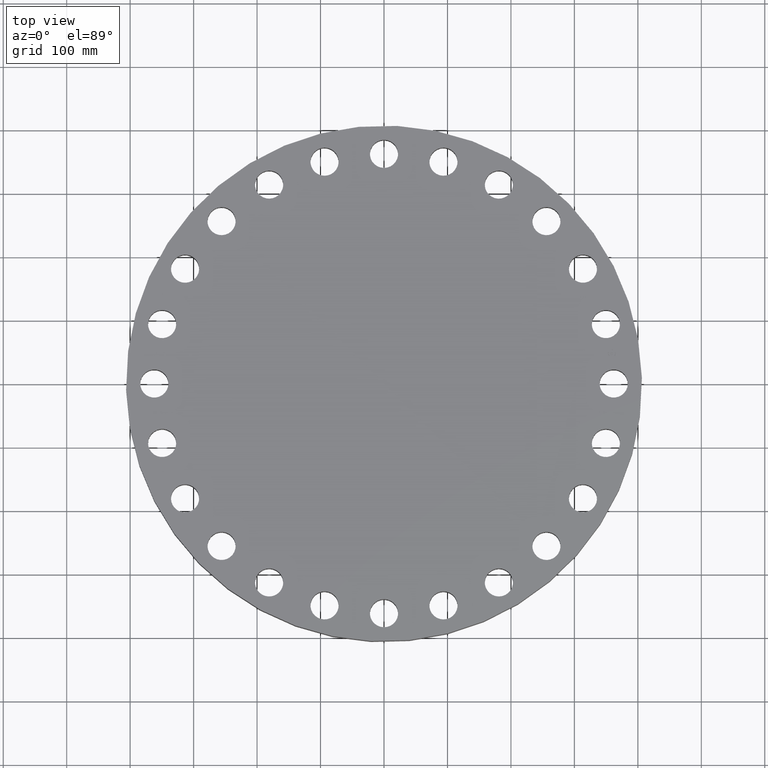
[diagram: clean part render]
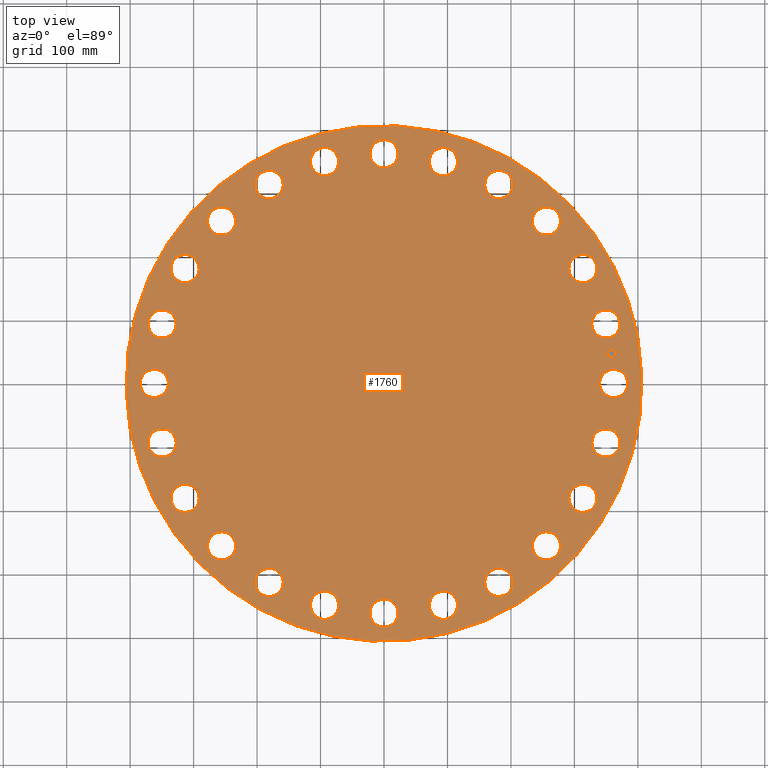
[diagram: same view with one face highlighted and labeled with its STEP entity id]
A machine part, top view. The second image highlights one B-rep face of the part: STEP entity #1760.
In plain terms, the highlighted planar face has unit normal (0, 0, -1).
Its self-contained STEP definition (entity closure, byte-faithful):
#65=AXIS2_PLACEMENT_3D('Circle Axis2P3D',#63,#64,$) ;
#82=AXIS2_PLACEMENT_3D('Circle Axis2P3D',#80,#81,$) ;
#115=AXIS2_PLACEMENT_3D('Circle Axis2P3D',#113,#114,$) ;
#139=AXIS2_PLACEMENT_3D('Circle Axis2P3D',#137,#138,$) ;
#669=AXIS2_PLACEMENT_3D('Circle Axis2P3D',#667,#668,$) ;
#681=AXIS2_PLACEMENT_3D('Circle Axis2P3D',#679,#680,$) ;
#712=AXIS2_PLACEMENT_3D('Circle Axis2P3D',#710,#711,$) ;
#724=AXIS2_PLACEMENT_3D('Circle Axis2P3D',#722,#723,$) ;
#755=AXIS2_PLACEMENT_3D('Circle Axis2P3D',#753,#754,$) ;
#767=AXIS2_PLACEMENT_3D('Circle Axis2P3D',#765,#766,$) ;
#798=AXIS2_PLACEMENT_3D('Circle Axis2P3D',#796,#797,$) ;
#810=AXIS2_PLACEMENT_3D('Circle Axis2P3D',#808,#809,$) ;
#841=AXIS2_PLACEMENT_3D('Circle Axis2P3D',#839,#840,$) ;
#853=AXIS2_PLACEMENT_3D('Circle Axis2P3D',#851,#852,$) ;
#884=AXIS2_PLACEMENT_3D('Circle Axis2P3D',#882,#883,$) ;
#896=AXIS2_PLACEMENT_3D('Circle Axis2P3D',#894,#895,$) ;
#927=AXIS2_PLACEMENT_3D('Circle Axis2P3D',#925,#926,$) ;
#939=AXIS2_PLACEMENT_3D('Circle Axis2P3D',#937,#938,$) ;
#970=AXIS2_PLACEMENT_3D('Circle Axis2P3D',#968,#969,$) ;
#982=AXIS2_PLACEMENT_3D('Circle Axis2P3D',#980,#981,$) ;
#1013=AXIS2_PLACEMENT_3D('Circle Axis2P3D',#1011,#1012,$) ;
#1025=AXIS2_PLACEMENT_3D('Circle Axis2P3D',#1023,#1024,$) ;
#1056=AXIS2_PLACEMENT_3D('Circle Axis2P3D',#1054,#1055,$) ;
#1068=AXIS2_PLACEMENT_3D('Circle Axis2P3D',#1066,#1067,$) ;
#1099=AXIS2_PLACEMENT_3D('Circle Axis2P3D',#1097,#1098,$) ;
#1111=AXIS2_PLACEMENT_3D('Circle Axis2P3D',#1109,#1110,$) ;
#1142=AXIS2_PLACEMENT_3D('Circle Axis2P3D',#1140,#1141,$) ;
#1154=AXIS2_PLACEMENT_3D('Circle Axis2P3D',#1152,#1153,$) ;
#1185=AXIS2_PLACEMENT_3D('Circle Axis2P3D',#1183,#1184,$) ;
#1197=AXIS2_PLACEMENT_3D('Circle Axis2P3D',#1195,#1196,$) ;
#1228=AXIS2_PLACEMENT_3D('Circle Axis2P3D',#1226,#1227,$) ;
#1240=AXIS2_PLACEMENT_3D('Circle Axis2P3D',#1238,#1239,$) ;
#1271=AXIS2_PLACEMENT_3D('Circle Axis2P3D',#1269,#1270,$) ;
#1283=AXIS2_PLACEMENT_3D('Circle Axis2P3D',#1281,#1282,$) ;
#1314=AXIS2_PLACEMENT_3D('Circle Axis2P3D',#1312,#1313,$) ;
#1326=AXIS2_PLACEMENT_3D('Circle Axis2P3D',#1324,#1325,$) ;
#1357=AXIS2_PLACEMENT_3D('Circle Axis2P3D',#1355,#1356,$) ;
#1369=AXIS2_PLACEMENT_3D('Circle Axis2P3D',#1367,#1368,$) ;
#1400=AXIS2_PLACEMENT_3D('Circle Axis2P3D',#1398,#1399,$) ;
#1412=AXIS2_PLACEMENT_3D('Circle Axis2P3D',#1410,#1411,$) ;
#1443=AXIS2_PLACEMENT_3D('Circle Axis2P3D',#1441,#1442,$) ;
#1455=AXIS2_PLACEMENT_3D('Circle Axis2P3D',#1453,#1454,$) ;
#1486=AXIS2_PLACEMENT_3D('Circle Axis2P3D',#1484,#1485,$) ;
#1498=AXIS2_PLACEMENT_3D('Circle Axis2P3D',#1496,#1497,$) ;
#1529=AXIS2_PLACEMENT_3D('Circle Axis2P3D',#1527,#1528,$) ;
#1541=AXIS2_PLACEMENT_3D('Circle Axis2P3D',#1539,#1540,$) ;
#1572=AXIS2_PLACEMENT_3D('Circle Axis2P3D',#1570,#1571,$) ;
#1584=AXIS2_PLACEMENT_3D('Circle Axis2P3D',#1582,#1583,$) ;
#1615=AXIS2_PLACEMENT_3D('Circle Axis2P3D',#1613,#1614,$) ;
#1627=AXIS2_PLACEMENT_3D('Circle Axis2P3D',#1625,#1626,$) ;
#1640=AXIS2_PLACEMENT_3D('Plane Axis2P3D',#1637,#1638,#1639) ;
#1744=AXIS2_PLACEMENT_3D('Circle Axis2P3D',#1742,#1743,$) ;
#1753=AXIS2_PLACEMENT_3D('Circle Axis2P3D',#1751,#1752,$) ;
#46=CARTESIAN_POINT('Vertex',(13.4821152584,0.41949734628,3.50000000001)) ;
#60=CARTESIAN_POINT('Vertex',(15.0178847417,-0.41949734628,3.50000000001)) ;
#63=CARTESIAN_POINT('Axis2P3D Location',(14.2500000001,0.,3.50000000001)) ;
#80=CARTESIAN_POINT('Axis2P3D Location',(14.2500000001,0.,3.50000000001)) ;
#110=CARTESIAN_POINT('Vertex',(-7.6708086177,-14.0413209903,3.50000000001)) ;
#113=CARTESIAN_POINT('Axis2P3D Location',(0.,0.,3.50000000001)) ;
#117=CARTESIAN_POINT('Vertex',(7.6708086177,14.0413209903,3.50000000001)) ;
#137=CARTESIAN_POINT('Axis2P3D Location',(0.,0.,3.50000000001)) ;
#657=CARTESIAN_POINT('Vertex',(-13.1312972237,3.08422487631,3.50000000001)) ;
#664=CARTESIAN_POINT('Vertex',(-14.3975888257,4.29211790914,3.50000000001)) ;
#667=CARTESIAN_POINT('Axis2P3D Location',(-13.7644430247,3.68817139273,3.50000000001)) ;
#679=CARTESIAN_POINT('Axis2P3D Location',(-13.7644430247,3.68817139273,3.50000000001)) ;
#700=CARTESIAN_POINT('Vertex',(11.8856029837,-6.3777622705,3.50000000001)) ;
#707=CARTESIAN_POINT('Vertex',(12.7961210243,-7.87223772956,3.50000000001)) ;
#710=CARTESIAN_POINT('Axis2P3D Location',(12.340862004,-7.12500000003,3.50000000001)) ;
#722=CARTESIAN_POINT('Axis2P3D Location',(12.340862004,-7.12500000003,3.50000000001)) ;
#743=CARTESIAN_POINT('Vertex',(-11.8856029837,6.3777622705,3.50000000001)) ;
#750=CARTESIAN_POINT('Vertex',(-12.7961210243,7.87223772956,3.50000000001)) ;
#753=CARTESIAN_POINT('Axis2P3D Location',(-12.340862004,7.12500000003,3.50000000001)) ;
#765=CARTESIAN_POINT('Axis2P3D Location',(-12.340862004,7.12500000003,3.50000000001)) ;
#786=CARTESIAN_POINT('Vertex',(9.8299245422,-9.23666570571,3.50000000001)) ;
#793=CARTESIAN_POINT('Vertex',(10.3226187217,-10.9158775582,3.50000000001)) ;
#796=CARTESIAN_POINT('Axis2P3D Location',(10.0762716319,-10.0762716319,3.50000000001)) ;
#808=CARTESIAN_POINT('Axis2P3D Location',(10.0762716319,-10.0762716319,3.50000000001)) ;
#829=CARTESIAN_POINT('Vertex',(-9.8299245422,9.23666570571,3.50000000001)) ;
#836=CARTESIAN_POINT('Vertex',(-10.3226187217,10.9158775582,3.50000000001)) ;
#839=CARTESIAN_POINT('Axis2P3D Location',(-10.0762716319,10.0762716319,3.50000000001)) ;
#851=CARTESIAN_POINT('Axis2P3D Location',(-10.0762716319,10.0762716319,3.50000000001)) ;
#872=CARTESIAN_POINT('Vertex',(7.1043529879,-11.4661056374,3.50000000001)) ;
#879=CARTESIAN_POINT('Vertex',(7.14564701216,-13.2156183706,3.50000000001)) ;
#882=CARTESIAN_POINT('Axis2P3D Location',(7.12500000003,-12.340862004,3.50000000001)) ;
#894=CARTESIAN_POINT('Axis2P3D Location',(7.12500000003,-12.340862004,3.50000000001)) ;
#915=CARTESIAN_POINT('Vertex',(-7.1043529879,11.4661056374,3.50000000001)) ;
#922=CARTESIAN_POINT('Vertex',(-7.14564701216,13.2156183706,3.50000000001)) ;
#925=CARTESIAN_POINT('Axis2P3D Location',(-7.12500000003,12.340862004,3.50000000001)) ;
#937=CARTESIAN_POINT('Axis2P3D Location',(-7.12500000003,12.340862004,3.50000000001)) ;
#958=CARTESIAN_POINT('Vertex',(3.89463151797,-12.9141494185,3.50000000001)) ;
#965=CARTESIAN_POINT('Vertex',(3.48171126748,-14.6147366308,3.50000000001)) ;
#968=CARTESIAN_POINT('Axis2P3D Location',(3.68817139273,-13.7644430247,3.50000000001)) ;
#980=CARTESIAN_POINT('Axis2P3D Location',(3.68817139273,-13.7644430247,3.50000000001)) ;
#1001=CARTESIAN_POINT('Vertex',(-3.89463151797,12.9141494185,3.50000000001)) ;
#1008=CARTESIAN_POINT('Vertex',(-3.48171126748,14.6147366308,3.50000000001)) ;
#1011=CARTESIAN_POINT('Axis2P3D Location',(-3.68817139273,13.7644430247,3.50000000001)) ;
#1023=CARTESIAN_POINT('Axis2P3D Location',(-3.68817139273,13.7644430247,3.50000000001)) ;
#1044=CARTESIAN_POINT('Vertex',(0.41949734628,-13.4821152584,3.50000000001)) ;
#1051=CARTESIAN_POINT('Vertex',(-0.41949734628,-15.0178847417,3.50000000001)) ;
#1054=CARTESIAN_POINT('Axis2P3D Location',(-1.36536903201E-015,-14.2500000001,3.50000000001)) ;
#1066=CARTESIAN_POINT('Axis2P3D Location',(-1.36536903201E-015,-14.2500000001,3.50000000001)) ;
#1087=CARTESIAN_POINT('Vertex',(-0.41949734628,13.4821152584,3.50000000001)) ;
#1094=CARTESIAN_POINT('Vertex',(0.41949734628,15.0178847417,3.50000000001)) ;
#1097=CARTESIAN_POINT('Axis2P3D Location',(-2.61768253319E-015,14.2500000001,3.50000000001)) ;
#1109=CARTESIAN_POINT('Axis2P3D Location',(-2.61768253319E-015,14.2500000001,3.50000000001)) ;
#1130=CARTESIAN_POINT('Vertex',(-3.08422487631,-13.1312972237,3.50000000001)) ;
#1137=CARTESIAN_POINT('Vertex',(-4.29211790914,-14.3975888257,3.50000000001)) ;
#1140=CARTESIAN_POINT('Axis2P3D Location',(-3.68817139273,-13.7644430247,3.50000000001)) ;
#1152=CARTESIAN_POINT('Axis2P3D Location',(-3.68817139273,-13.7644430247,3.50000000001)) ;
#1173=CARTESIAN_POINT('Vertex',(3.08422487631,13.1312972237,3.50000000001)) ;
#1180=CARTESIAN_POINT('Vertex',(4.29211790914,14.3975888257,3.50000000001)) ;
#1183=CARTESIAN_POINT('Axis2P3D Location',(3.68817139273,13.7644430247,3.50000000001)) ;
#1195=CARTESIAN_POINT('Axis2P3D Location',(3.68817139273,13.7644430247,3.50000000001)) ;
#1216=CARTESIAN_POINT('Vertex',(-6.3777622705,-11.8856029837,3.50000000001)) ;
#1223=CARTESIAN_POINT('Vertex',(-7.87223772956,-12.7961210243,3.50000000001)) ;
#1226=CARTESIAN_POINT('Axis2P3D Location',(-7.12500000003,-12.340862004,3.50000000001)) ;
#1238=CARTESIAN_POINT('Axis2P3D Location',(-7.12500000003,-12.340862004,3.50000000001)) ;
#1259=CARTESIAN_POINT('Vertex',(6.3777622705,11.8856029837,3.50000000001)) ;
#1266=CARTESIAN_POINT('Vertex',(7.87223772956,12.7961210243,3.50000000001)) ;
#1269=CARTESIAN_POINT('Axis2P3D Location',(7.12500000003,12.340862004,3.50000000001)) ;
#1281=CARTESIAN_POINT('Axis2P3D Location',(7.12500000003,12.340862004,3.50000000001)) ;
#1302=CARTESIAN_POINT('Vertex',(-9.23666570571,-9.8299245422,3.50000000001)) ;
#1309=CARTESIAN_POINT('Vertex',(-10.9158775582,-10.3226187217,3.50000000001)) ;
#1312=CARTESIAN_POINT('Axis2P3D Location',(-10.0762716319,-10.0762716319,3.50000000001)) ;
#1324=CARTESIAN_POINT('Axis2P3D Location',(-10.0762716319,-10.0762716319,3.50000000001)) ;
#1345=CARTESIAN_POINT('Vertex',(9.23666570571,9.8299245422,3.50000000001)) ;
#1352=CARTESIAN_POINT('Vertex',(10.9158775582,10.3226187217,3.50000000001)) ;
#1355=CARTESIAN_POINT('Axis2P3D Location',(10.0762716319,10.0762716319,3.50000000001)) ;
#1367=CARTESIAN_POINT('Axis2P3D Location',(10.0762716319,10.0762716319,3.50000000001)) ;
#1388=CARTESIAN_POINT('Vertex',(-11.4661056374,-7.1043529879,3.50000000001)) ;
#1395=CARTESIAN_POINT('Vertex',(-13.2156183706,-7.14564701216,3.50000000001)) ;
#1398=CARTESIAN_POINT('Axis2P3D Location',(-12.340862004,-7.12500000003,3.50000000001)) ;
#1410=CARTESIAN_POINT('Axis2P3D Location',(-12.340862004,-7.12500000003,3.50000000001)) ;
#1431=CARTESIAN_POINT('Vertex',(11.4661056374,7.1043529879,3.50000000001)) ;
#1438=CARTESIAN_POINT('Vertex',(13.2156183706,7.14564701216,3.50000000001)) ;
#1441=CARTESIAN_POINT('Axis2P3D Location',(12.340862004,7.12500000003,3.50000000001)) ;
#1453=CARTESIAN_POINT('Axis2P3D Location',(12.340862004,7.12500000003,3.50000000001)) ;
#1474=CARTESIAN_POINT('Vertex',(-12.9141494185,-3.89463151797,3.50000000001)) ;
#1481=CARTESIAN_POINT('Vertex',(-14.6147366308,-3.48171126748,3.50000000001)) ;
#1484=CARTESIAN_POINT('Axis2P3D Location',(-13.7644430247,-3.68817139273,3.50000000001)) ;
#1496=CARTESIAN_POINT('Axis2P3D Location',(-13.7644430247,-3.68817139273,3.50000000001)) ;
#1517=CARTESIAN_POINT('Vertex',(12.9141494185,3.89463151797,3.50000000001)) ;
#1524=CARTESIAN_POINT('Vertex',(14.6147366308,3.48171126748,3.50000000001)) ;
#1527=CARTESIAN_POINT('Axis2P3D Location',(13.7644430247,3.68817139273,3.50000000001)) ;
#1539=CARTESIAN_POINT('Axis2P3D Location',(13.7644430247,3.68817139273,3.50000000001)) ;
#1560=CARTESIAN_POINT('Vertex',(-13.4821152584,-0.41949734628,3.50000000001)) ;
#1567=CARTESIAN_POINT('Vertex',(-15.0178847417,0.41949734628,3.50000000001)) ;
#1570=CARTESIAN_POINT('Axis2P3D Location',(-14.2500000001,-1.74512168879E-015,3.50000000001)) ;
#1582=CARTESIAN_POINT('Axis2P3D Location',(-14.2500000001,-1.74512168879E-015,3.50000000001)) ;
#1603=CARTESIAN_POINT('Vertex',(13.1312972237,-3.08422487631,3.50000000001)) ;
#1610=CARTESIAN_POINT('Vertex',(14.3975888257,-4.29211790914,3.50000000001)) ;
#1613=CARTESIAN_POINT('Axis2P3D Location',(13.7644430247,-3.68817139273,3.50000000001)) ;
#1625=CARTESIAN_POINT('Axis2P3D Location',(13.7644430247,-3.68817139273,3.50000000001)) ;
#1637=CARTESIAN_POINT('Axis2P3D Location',(0.,16.0000000001,3.50000000001)) ;
#1742=CARTESIAN_POINT('Axis2P3D Location',(14.1280892746,1.85999823914,3.50000000001)) ;
#1746=CARTESIAN_POINT('Vertex',(14.0957840421,2.10538084233,3.50000000001)) ;
#1748=CARTESIAN_POINT('Vertex',(14.1603945072,1.61461563595,3.50000000001)) ;
#1751=CARTESIAN_POINT('Axis2P3D Location',(14.1280892746,1.85999823914,3.50000000001)) ;
#64=DIRECTION('Axis2P3D Direction',(0.,-0.,-0.0393700787402)) ;
#81=DIRECTION('Axis2P3D Direction',(0.,-0.,-0.0393700787402)) ;
#114=DIRECTION('Axis2P3D Direction',(0.,0.,-0.0393700787402)) ;
#138=DIRECTION('Axis2P3D Direction',(0.,0.,-0.0393700787402)) ;
#668=DIRECTION('Axis2P3D Direction',(0.,0.,-0.0393700787402)) ;
#680=DIRECTION('Axis2P3D Direction',(0.,0.,-0.0393700787402)) ;
#711=DIRECTION('Axis2P3D Direction',(0.,-0.,-0.0393700787402)) ;
#723=DIRECTION('Axis2P3D Direction',(0.,-0.,-0.0393700787402)) ;
#754=DIRECTION('Axis2P3D Direction',(0.,0.,-0.0393700787402)) ;
#766=DIRECTION('Axis2P3D Direction',(0.,0.,-0.0393700787402)) ;
#797=DIRECTION('Axis2P3D Direction',(0.,-0.,-0.0393700787402)) ;
#809=DIRECTION('Axis2P3D Direction',(0.,-0.,-0.0393700787402)) ;
#840=DIRECTION('Axis2P3D Direction',(0.,0.,-0.0393700787402)) ;
#852=DIRECTION('Axis2P3D Direction',(0.,0.,-0.0393700787402)) ;
#883=DIRECTION('Axis2P3D Direction',(0.,-0.,-0.0393700787402)) ;
#895=DIRECTION('Axis2P3D Direction',(0.,-0.,-0.0393700787402)) ;
#926=DIRECTION('Axis2P3D Direction',(0.,0.,-0.0393700787402)) ;
#938=DIRECTION('Axis2P3D Direction',(0.,0.,-0.0393700787402)) ;
#969=DIRECTION('Axis2P3D Direction',(0.,-0.,-0.0393700787402)) ;
#981=DIRECTION('Axis2P3D Direction',(0.,-0.,-0.0393700787402)) ;
#1012=DIRECTION('Axis2P3D Direction',(0.,0.,-0.0393700787402)) ;
#1024=DIRECTION('Axis2P3D Direction',(0.,0.,-0.0393700787402)) ;
#1055=DIRECTION('Axis2P3D Direction',(0.,-0.,-0.0393700787402)) ;
#1067=DIRECTION('Axis2P3D Direction',(0.,-0.,-0.0393700787402)) ;
#1098=DIRECTION('Axis2P3D Direction',(0.,0.,-0.0393700787402)) ;
#1110=DIRECTION('Axis2P3D Direction',(0.,0.,-0.0393700787402)) ;
#1141=DIRECTION('Axis2P3D Direction',(-0.,0.,-0.0393700787402)) ;
#1153=DIRECTION('Axis2P3D Direction',(-0.,0.,-0.0393700787402)) ;
#1184=DIRECTION('Axis2P3D Direction',(0.,0.,-0.0393700787402)) ;
#1196=DIRECTION('Axis2P3D Direction',(0.,0.,-0.0393700787402)) ;
#1227=DIRECTION('Axis2P3D Direction',(-0.,0.,-0.0393700787402)) ;
#1239=DIRECTION('Axis2P3D Direction',(-0.,0.,-0.0393700787402)) ;
#1270=DIRECTION('Axis2P3D Direction',(0.,0.,-0.0393700787402)) ;
#1282=DIRECTION('Axis2P3D Direction',(0.,0.,-0.0393700787402)) ;
#1313=DIRECTION('Axis2P3D Direction',(-0.,0.,-0.0393700787402)) ;
#1325=DIRECTION('Axis2P3D Direction',(-0.,0.,-0.0393700787402)) ;
#1356=DIRECTION('Axis2P3D Direction',(0.,0.,-0.0393700787402)) ;
#1368=DIRECTION('Axis2P3D Direction',(0.,0.,-0.0393700787402)) ;
#1399=DIRECTION('Axis2P3D Direction',(-0.,0.,-0.0393700787402)) ;
#1411=DIRECTION('Axis2P3D Direction',(-0.,0.,-0.0393700787402)) ;
#1442=DIRECTION('Axis2P3D Direction',(0.,0.,-0.0393700787402)) ;
#1454=DIRECTION('Axis2P3D Direction',(0.,0.,-0.0393700787402)) ;
#1485=DIRECTION('Axis2P3D Direction',(-0.,0.,-0.0393700787402)) ;
#1497=DIRECTION('Axis2P3D Direction',(-0.,0.,-0.0393700787402)) ;
#1528=DIRECTION('Axis2P3D Direction',(0.,0.,-0.0393700787402)) ;
#1540=DIRECTION('Axis2P3D Direction',(0.,0.,-0.0393700787402)) ;
#1571=DIRECTION('Axis2P3D Direction',(-0.,0.,-0.0393700787402)) ;
#1583=DIRECTION('Axis2P3D Direction',(-0.,0.,-0.0393700787402)) ;
#1614=DIRECTION('Axis2P3D Direction',(0.,-0.,-0.0393700787402)) ;
#1626=DIRECTION('Axis2P3D Direction',(0.,-0.,-0.0393700787402)) ;
#1638=DIRECTION('Axis2P3D Direction',(0.,0.,-0.0393700787402)) ;
#1639=DIRECTION('Axis2P3D XDirection',(0.0393700787402,0.,0.)) ;
#1743=DIRECTION('Axis2P3D Direction',(0.,0.,-0.0393700787402)) ;
#1752=DIRECTION('Axis2P3D Direction',(0.,0.,-0.0393700787402)) ;
#1643=ORIENTED_EDGE('',*,*,#141,.F.) ;
#1644=ORIENTED_EDGE('',*,*,#119,.F.) ;
#1647=ORIENTED_EDGE('',*,*,#67,.T.) ;
#1648=ORIENTED_EDGE('',*,*,#84,.T.) ;
#1651=ORIENTED_EDGE('',*,*,#1629,.T.) ;
#1652=ORIENTED_EDGE('',*,*,#1617,.T.) ;
#1655=ORIENTED_EDGE('',*,*,#726,.T.) ;
#1656=ORIENTED_EDGE('',*,*,#714,.T.) ;
#1659=ORIENTED_EDGE('',*,*,#812,.T.) ;
#1660=ORIENTED_EDGE('',*,*,#800,.T.) ;
#1663=ORIENTED_EDGE('',*,*,#898,.T.) ;
#1664=ORIENTED_EDGE('',*,*,#886,.T.) ;
#1667=ORIENTED_EDGE('',*,*,#984,.T.) ;
#1668=ORIENTED_EDGE('',*,*,#972,.T.) ;
#1671=ORIENTED_EDGE('',*,*,#1070,.T.) ;
#1672=ORIENTED_EDGE('',*,*,#1058,.T.) ;
#1675=ORIENTED_EDGE('',*,*,#1156,.T.) ;
#1676=ORIENTED_EDGE('',*,*,#1144,.T.) ;
#1679=ORIENTED_EDGE('',*,*,#1242,.T.) ;
#1680=ORIENTED_EDGE('',*,*,#1230,.T.) ;
#1683=ORIENTED_EDGE('',*,*,#1328,.T.) ;
#1684=ORIENTED_EDGE('',*,*,#1316,.T.) ;
#1687=ORIENTED_EDGE('',*,*,#1414,.T.) ;
#1688=ORIENTED_EDGE('',*,*,#1402,.T.) ;
#1691=ORIENTED_EDGE('',*,*,#1500,.T.) ;
#1692=ORIENTED_EDGE('',*,*,#1488,.T.) ;
#1695=ORIENTED_EDGE('',*,*,#1586,.T.) ;
#1696=ORIENTED_EDGE('',*,*,#1574,.T.) ;
#1699=ORIENTED_EDGE('',*,*,#683,.T.) ;
#1700=ORIENTED_EDGE('',*,*,#671,.T.) ;
#1703=ORIENTED_EDGE('',*,*,#769,.T.) ;
#1704=ORIENTED_EDGE('',*,*,#757,.T.) ;
#1707=ORIENTED_EDGE('',*,*,#855,.T.) ;
#1708=ORIENTED_EDGE('',*,*,#843,.T.) ;
#1711=ORIENTED_EDGE('',*,*,#941,.T.) ;
#1712=ORIENTED_EDGE('',*,*,#929,.T.) ;
#1715=ORIENTED_EDGE('',*,*,#1027,.T.) ;
#1716=ORIENTED_EDGE('',*,*,#1015,.T.) ;
#1719=ORIENTED_EDGE('',*,*,#1113,.T.) ;
#1720=ORIENTED_EDGE('',*,*,#1101,.T.) ;
#1723=ORIENTED_EDGE('',*,*,#1199,.T.) ;
#1724=ORIENTED_EDGE('',*,*,#1187,.T.) ;
#1727=ORIENTED_EDGE('',*,*,#1285,.T.) ;
#1728=ORIENTED_EDGE('',*,*,#1273,.T.) ;
#1731=ORIENTED_EDGE('',*,*,#1371,.T.) ;
#1732=ORIENTED_EDGE('',*,*,#1359,.T.) ;
#1735=ORIENTED_EDGE('',*,*,#1457,.T.) ;
#1736=ORIENTED_EDGE('',*,*,#1445,.T.) ;
#1739=ORIENTED_EDGE('',*,*,#1543,.T.) ;
#1740=ORIENTED_EDGE('',*,*,#1531,.T.) ;
#1757=ORIENTED_EDGE('',*,*,#1750,.T.) ;
#1758=ORIENTED_EDGE('',*,*,#1755,.T.) ;
#1649=FACE_BOUND('',#1646,.T.) ;
#1653=FACE_BOUND('',#1650,.T.) ;
#1657=FACE_BOUND('',#1654,.T.) ;
#1661=FACE_BOUND('',#1658,.T.) ;
#1665=FACE_BOUND('',#1662,.T.) ;
#1669=FACE_BOUND('',#1666,.T.) ;
#1673=FACE_BOUND('',#1670,.T.) ;
#1677=FACE_BOUND('',#1674,.T.) ;
#1681=FACE_BOUND('',#1678,.T.) ;
#1685=FACE_BOUND('',#1682,.T.) ;
#1689=FACE_BOUND('',#1686,.T.) ;
#1693=FACE_BOUND('',#1690,.T.) ;
#1697=FACE_BOUND('',#1694,.T.) ;
#1701=FACE_BOUND('',#1698,.T.) ;
#1705=FACE_BOUND('',#1702,.T.) ;
#1709=FACE_BOUND('',#1706,.T.) ;
#1713=FACE_BOUND('',#1710,.T.) ;
#1717=FACE_BOUND('',#1714,.T.) ;
#1721=FACE_BOUND('',#1718,.T.) ;
#1725=FACE_BOUND('',#1722,.T.) ;
#1729=FACE_BOUND('',#1726,.T.) ;
#1733=FACE_BOUND('',#1730,.T.) ;
#1737=FACE_BOUND('',#1734,.T.) ;
#1741=FACE_BOUND('',#1738,.T.) ;
#1759=FACE_BOUND('',#1756,.T.) ;
#1760=ADVANCED_FACE('PartBody',(#1645,#1649,#1653,#1657,#1661,#1665,#1669,#1673,#1677,#1681,#1685,#1689,#1693,#1697,#1701,#1705,#1709,#1713,#1717,#1721,#1725,#1729,#1733,#1737,#1741,#1759),#1641,.F.) ;
#66=CIRCLE('generated circle',#65,0.875000000004) ;
#83=CIRCLE('generated circle',#82,0.875000000004) ;
#116=CIRCLE('generated circle',#115,16.0000000001) ;
#140=CIRCLE('generated circle',#139,16.0000000001) ;
#670=CIRCLE('generated circle',#669,0.875000000004) ;
#682=CIRCLE('generated circle',#681,0.875000000004) ;
#713=CIRCLE('generated circle',#712,0.875000000003) ;
#725=CIRCLE('generated circle',#724,0.875000000003) ;
#756=CIRCLE('generated circle',#755,0.875000000003) ;
#768=CIRCLE('generated circle',#767,0.875000000003) ;
#799=CIRCLE('generated circle',#798,0.875000000004) ;
#811=CIRCLE('generated circle',#810,0.875000000004) ;
#842=CIRCLE('generated circle',#841,0.875000000004) ;
#854=CIRCLE('generated circle',#853,0.875000000004) ;
#885=CIRCLE('generated circle',#884,0.875000000003) ;
#897=CIRCLE('generated circle',#896,0.875000000003) ;
#928=CIRCLE('generated circle',#927,0.875000000003) ;
#940=CIRCLE('generated circle',#939,0.875000000003) ;
#971=CIRCLE('generated circle',#970,0.875000000004) ;
#983=CIRCLE('generated circle',#982,0.875000000004) ;
#1014=CIRCLE('generated circle',#1013,0.875000000004) ;
#1026=CIRCLE('generated circle',#1025,0.875000000004) ;
#1057=CIRCLE('generated circle',#1056,0.875000000004) ;
#1069=CIRCLE('generated circle',#1068,0.875000000004) ;
#1100=CIRCLE('generated circle',#1099,0.875000000004) ;
#1112=CIRCLE('generated circle',#1111,0.875000000004) ;
#1143=CIRCLE('generated circle',#1142,0.875000000004) ;
#1155=CIRCLE('generated circle',#1154,0.875000000004) ;
#1186=CIRCLE('generated circle',#1185,0.875000000004) ;
#1198=CIRCLE('generated circle',#1197,0.875000000004) ;
#1229=CIRCLE('generated circle',#1228,0.875000000003) ;
#1241=CIRCLE('generated circle',#1240,0.875000000003) ;
#1272=CIRCLE('generated circle',#1271,0.875000000003) ;
#1284=CIRCLE('generated circle',#1283,0.875000000003) ;
#1315=CIRCLE('generated circle',#1314,0.875000000003) ;
#1327=CIRCLE('generated circle',#1326,0.875000000003) ;
#1358=CIRCLE('generated circle',#1357,0.875000000004) ;
#1370=CIRCLE('generated circle',#1369,0.875000000004) ;
#1401=CIRCLE('generated circle',#1400,0.875000000003) ;
#1413=CIRCLE('generated circle',#1412,0.875000000003) ;
#1444=CIRCLE('generated circle',#1443,0.875000000003) ;
#1456=CIRCLE('generated circle',#1455,0.875000000003) ;
#1487=CIRCLE('generated circle',#1486,0.875000000004) ;
#1499=CIRCLE('generated circle',#1498,0.875000000004) ;
#1530=CIRCLE('generated circle',#1529,0.875000000004) ;
#1542=CIRCLE('generated circle',#1541,0.875000000004) ;
#1573=CIRCLE('generated circle',#1572,0.875000000004) ;
#1585=CIRCLE('generated circle',#1584,0.875000000004) ;
#1616=CIRCLE('generated circle',#1615,0.875000000004) ;
#1628=CIRCLE('generated circle',#1627,0.875000000004) ;
#1745=CIRCLE('generated circle',#1744,0.247500000001) ;
#1754=CIRCLE('generated circle',#1753,0.247500000001) ;
#67=EDGE_CURVE('',#47,#61,#66,.T.) ;
#84=EDGE_CURVE('',#61,#47,#83,.T.) ;
#119=EDGE_CURVE('',#111,#118,#116,.T.) ;
#141=EDGE_CURVE('',#118,#111,#140,.T.) ;
#671=EDGE_CURVE('',#658,#665,#670,.T.) ;
#683=EDGE_CURVE('',#665,#658,#682,.T.) ;
#714=EDGE_CURVE('',#701,#708,#713,.T.) ;
#726=EDGE_CURVE('',#708,#701,#725,.T.) ;
#757=EDGE_CURVE('',#744,#751,#756,.T.) ;
#769=EDGE_CURVE('',#751,#744,#768,.T.) ;
#800=EDGE_CURVE('',#787,#794,#799,.T.) ;
#812=EDGE_CURVE('',#794,#787,#811,.T.) ;
#843=EDGE_CURVE('',#830,#837,#842,.T.) ;
#855=EDGE_CURVE('',#837,#830,#854,.T.) ;
#886=EDGE_CURVE('',#873,#880,#885,.T.) ;
#898=EDGE_CURVE('',#880,#873,#897,.T.) ;
#929=EDGE_CURVE('',#916,#923,#928,.T.) ;
#941=EDGE_CURVE('',#923,#916,#940,.T.) ;
#972=EDGE_CURVE('',#959,#966,#971,.T.) ;
#984=EDGE_CURVE('',#966,#959,#983,.T.) ;
#1015=EDGE_CURVE('',#1002,#1009,#1014,.T.) ;
#1027=EDGE_CURVE('',#1009,#1002,#1026,.T.) ;
#1058=EDGE_CURVE('',#1045,#1052,#1057,.T.) ;
#1070=EDGE_CURVE('',#1052,#1045,#1069,.T.) ;
#1101=EDGE_CURVE('',#1088,#1095,#1100,.T.) ;
#1113=EDGE_CURVE('',#1095,#1088,#1112,.T.) ;
#1144=EDGE_CURVE('',#1131,#1138,#1143,.T.) ;
#1156=EDGE_CURVE('',#1138,#1131,#1155,.T.) ;
#1187=EDGE_CURVE('',#1174,#1181,#1186,.T.) ;
#1199=EDGE_CURVE('',#1181,#1174,#1198,.T.) ;
#1230=EDGE_CURVE('',#1217,#1224,#1229,.T.) ;
#1242=EDGE_CURVE('',#1224,#1217,#1241,.T.) ;
#1273=EDGE_CURVE('',#1260,#1267,#1272,.T.) ;
#1285=EDGE_CURVE('',#1267,#1260,#1284,.T.) ;
#1316=EDGE_CURVE('',#1303,#1310,#1315,.T.) ;
#1328=EDGE_CURVE('',#1310,#1303,#1327,.T.) ;
#1359=EDGE_CURVE('',#1346,#1353,#1358,.T.) ;
#1371=EDGE_CURVE('',#1353,#1346,#1370,.T.) ;
#1402=EDGE_CURVE('',#1389,#1396,#1401,.T.) ;
#1414=EDGE_CURVE('',#1396,#1389,#1413,.T.) ;
#1445=EDGE_CURVE('',#1432,#1439,#1444,.T.) ;
#1457=EDGE_CURVE('',#1439,#1432,#1456,.T.) ;
#1488=EDGE_CURVE('',#1475,#1482,#1487,.T.) ;
#1500=EDGE_CURVE('',#1482,#1475,#1499,.T.) ;
#1531=EDGE_CURVE('',#1518,#1525,#1530,.T.) ;
#1543=EDGE_CURVE('',#1525,#1518,#1542,.T.) ;
#1574=EDGE_CURVE('',#1561,#1568,#1573,.T.) ;
#1586=EDGE_CURVE('',#1568,#1561,#1585,.T.) ;
#1617=EDGE_CURVE('',#1604,#1611,#1616,.T.) ;
#1629=EDGE_CURVE('',#1611,#1604,#1628,.T.) ;
#1750=EDGE_CURVE('',#1747,#1749,#1745,.T.) ;
#1755=EDGE_CURVE('',#1749,#1747,#1754,.T.) ;
#1642=EDGE_LOOP('',(#1643,#1644)) ;
#1646=EDGE_LOOP('',(#1647,#1648)) ;
#1650=EDGE_LOOP('',(#1651,#1652)) ;
#1654=EDGE_LOOP('',(#1655,#1656)) ;
#1658=EDGE_LOOP('',(#1659,#1660)) ;
#1662=EDGE_LOOP('',(#1663,#1664)) ;
#1666=EDGE_LOOP('',(#1667,#1668)) ;
#1670=EDGE_LOOP('',(#1671,#1672)) ;
#1674=EDGE_LOOP('',(#1675,#1676)) ;
#1678=EDGE_LOOP('',(#1679,#1680)) ;
#1682=EDGE_LOOP('',(#1683,#1684)) ;
#1686=EDGE_LOOP('',(#1687,#1688)) ;
#1690=EDGE_LOOP('',(#1691,#1692)) ;
#1694=EDGE_LOOP('',(#1695,#1696)) ;
#1698=EDGE_LOOP('',(#1699,#1700)) ;
#1702=EDGE_LOOP('',(#1703,#1704)) ;
#1706=EDGE_LOOP('',(#1707,#1708)) ;
#1710=EDGE_LOOP('',(#1711,#1712)) ;
#1714=EDGE_LOOP('',(#1715,#1716)) ;
#1718=EDGE_LOOP('',(#1719,#1720)) ;
#1722=EDGE_LOOP('',(#1723,#1724)) ;
#1726=EDGE_LOOP('',(#1727,#1728)) ;
#1730=EDGE_LOOP('',(#1731,#1732)) ;
#1734=EDGE_LOOP('',(#1735,#1736)) ;
#1738=EDGE_LOOP('',(#1739,#1740)) ;
#1756=EDGE_LOOP('',(#1757,#1758)) ;
#1645=FACE_OUTER_BOUND('',#1642,.T.) ;
#1641=PLANE('',#1640) ;
#47=VERTEX_POINT('',#46) ;
#61=VERTEX_POINT('',#60) ;
#111=VERTEX_POINT('',#110) ;
#118=VERTEX_POINT('',#117) ;
#658=VERTEX_POINT('',#657) ;
#665=VERTEX_POINT('',#664) ;
#701=VERTEX_POINT('',#700) ;
#708=VERTEX_POINT('',#707) ;
#744=VERTEX_POINT('',#743) ;
#751=VERTEX_POINT('',#750) ;
#787=VERTEX_POINT('',#786) ;
#794=VERTEX_POINT('',#793) ;
#830=VERTEX_POINT('',#829) ;
#837=VERTEX_POINT('',#836) ;
#873=VERTEX_POINT('',#872) ;
#880=VERTEX_POINT('',#879) ;
#916=VERTEX_POINT('',#915) ;
#923=VERTEX_POINT('',#922) ;
#959=VERTEX_POINT('',#958) ;
#966=VERTEX_POINT('',#965) ;
#1002=VERTEX_POINT('',#1001) ;
#1009=VERTEX_POINT('',#1008) ;
#1045=VERTEX_POINT('',#1044) ;
#1052=VERTEX_POINT('',#1051) ;
#1088=VERTEX_POINT('',#1087) ;
#1095=VERTEX_POINT('',#1094) ;
#1131=VERTEX_POINT('',#1130) ;
#1138=VERTEX_POINT('',#1137) ;
#1174=VERTEX_POINT('',#1173) ;
#1181=VERTEX_POINT('',#1180) ;
#1217=VERTEX_POINT('',#1216) ;
#1224=VERTEX_POINT('',#1223) ;
#1260=VERTEX_POINT('',#1259) ;
#1267=VERTEX_POINT('',#1266) ;
#1303=VERTEX_POINT('',#1302) ;
#1310=VERTEX_POINT('',#1309) ;
#1346=VERTEX_POINT('',#1345) ;
#1353=VERTEX_POINT('',#1352) ;
#1389=VERTEX_POINT('',#1388) ;
#1396=VERTEX_POINT('',#1395) ;
#1432=VERTEX_POINT('',#1431) ;
#1439=VERTEX_POINT('',#1438) ;
#1475=VERTEX_POINT('',#1474) ;
#1482=VERTEX_POINT('',#1481) ;
#1518=VERTEX_POINT('',#1517) ;
#1525=VERTEX_POINT('',#1524) ;
#1561=VERTEX_POINT('',#1560) ;
#1568=VERTEX_POINT('',#1567) ;
#1604=VERTEX_POINT('',#1603) ;
#1611=VERTEX_POINT('',#1610) ;
#1747=VERTEX_POINT('',#1746) ;
#1749=VERTEX_POINT('',#1748) ;